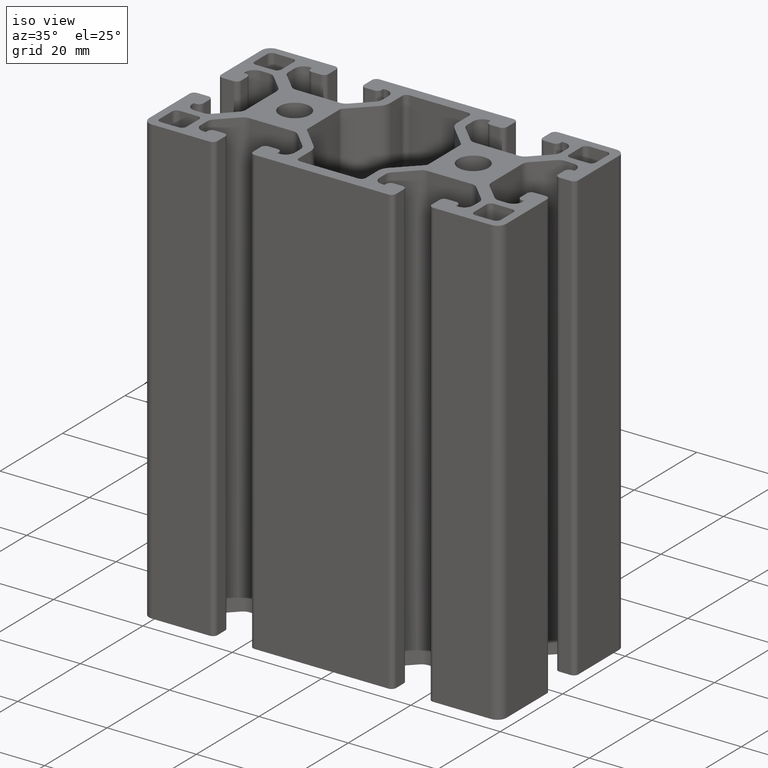
[diagram: clean part render]
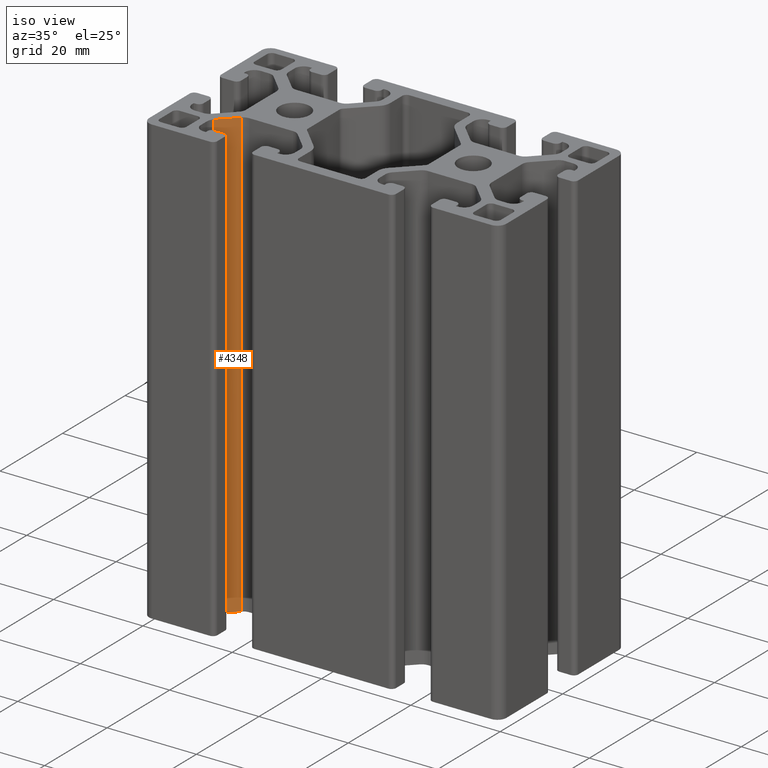
[diagram: same view with one face highlighted and labeled with its STEP entity id]
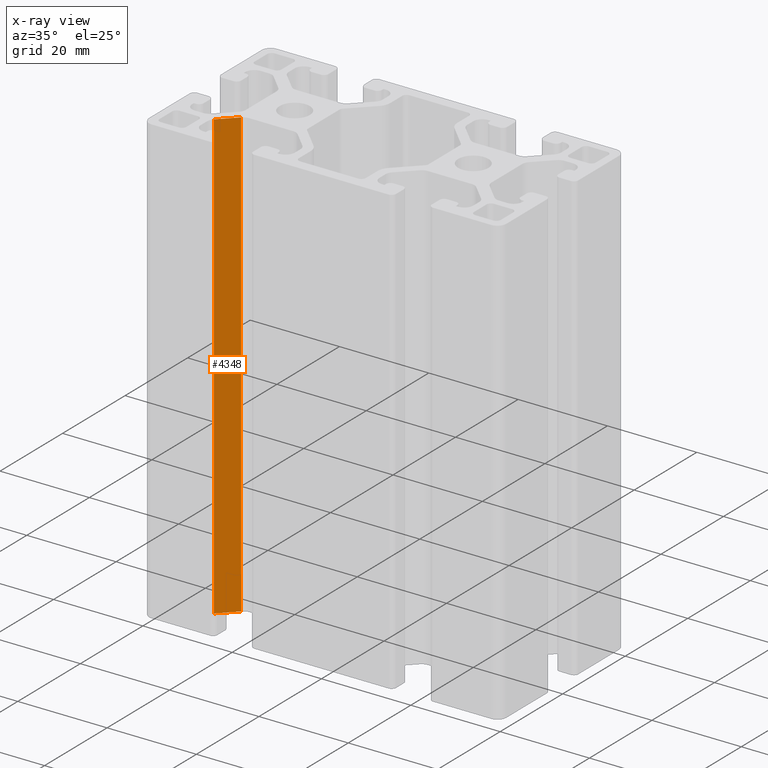
[diagram: x-ray of the same camera — body ghosted, the highlighted face saturated]
A machine part, iso view. The second image highlights one B-rep face of the part: STEP entity #4348.
The next image is the same camera in x-ray: the body ghosted, the highlighted face saturated — about 0% of this face is hidden behind the body in this view.
In plain terms, the highlighted planar face has unit normal (-0.7071, 0.7071, 0).
Its self-contained STEP definition (entity closure, byte-faithful):
#53=PLANE('',#4652);
#285=LINE('',#6724,#737);
#286=LINE('',#6728,#738);
#287=LINE('',#6730,#739);
#288=LINE('',#6731,#740);
#737=VECTOR('',#5395,100.);
#738=VECTOR('',#5400,5.08578643762691);
#739=VECTOR('',#5401,100.);
#740=VECTOR('',#5402,5.08578643762691);
#1130=FACE_OUTER_BOUND('',#1356,.T.);
#1356=EDGE_LOOP('',(#3141,#3142,#3143,#3144));
#1885=VERTEX_POINT('',#6721);
#1886=VERTEX_POINT('',#6723);
#1887=VERTEX_POINT('',#6727);
#1888=VERTEX_POINT('',#6729);
#2402=EDGE_CURVE('',#1886,#1885,#285,.T.);
#2404=EDGE_CURVE('',#1887,#1885,#286,.T.);
#2405=EDGE_CURVE('',#1888,#1887,#287,.T.);
#2406=EDGE_CURVE('',#1886,#1888,#288,.T.);
#3141=ORIENTED_EDGE('',*,*,#2404,.F.);
#3142=ORIENTED_EDGE('',*,*,#2405,.F.);
#3143=ORIENTED_EDGE('',*,*,#2406,.F.);
#3144=ORIENTED_EDGE('',*,*,#2402,.T.);
#4348=ADVANCED_FACE('',(#1130),#53,.F.);
#4652=AXIS2_PLACEMENT_3D('',#6726,#5398,#5399);
#5395=DIRECTION('',(0.,0.,1.));
#5398=DIRECTION('center_axis',(-0.707106781186549,0.707106781186546,0.));
#5399=DIRECTION('ref_axis',(-0.707106781186546,-0.707106781186549,0.));
#5400=DIRECTION('',(0.707106781186546,0.707106781186549,0.));
#5401=DIRECTION('',(0.,0.,1.));
#5402=DIRECTION('',(-0.707106781186546,-0.707106781186549,0.));
#6721=CARTESIAN_POINT('',(-26.3180194846605,-8.08578643762695,100.));
#6723=CARTESIAN_POINT('',(-26.3180194846605,-8.08578643762695,0.));
#6724=CARTESIAN_POINT('',(-26.3180194846605,-8.08578643762695,0.));
#6726=CARTESIAN_POINT('Origin',(-26.3180194846605,-8.08578643762695,0.));
#6727=CARTESIAN_POINT('',(-29.9142135623731,-11.6819805153395,100.));
#6728=CARTESIAN_POINT('',(-17.7170680040887,0.515165042944927,100.));
#6729=CARTESIAN_POINT('',(-29.9142135623731,-11.6819805153395,0.));
#6730=CARTESIAN_POINT('',(-29.9142135623731,-11.6819805153395,0.));
#6731=CARTESIAN_POINT('',(-17.7170680040887,0.515165042944927,0.));